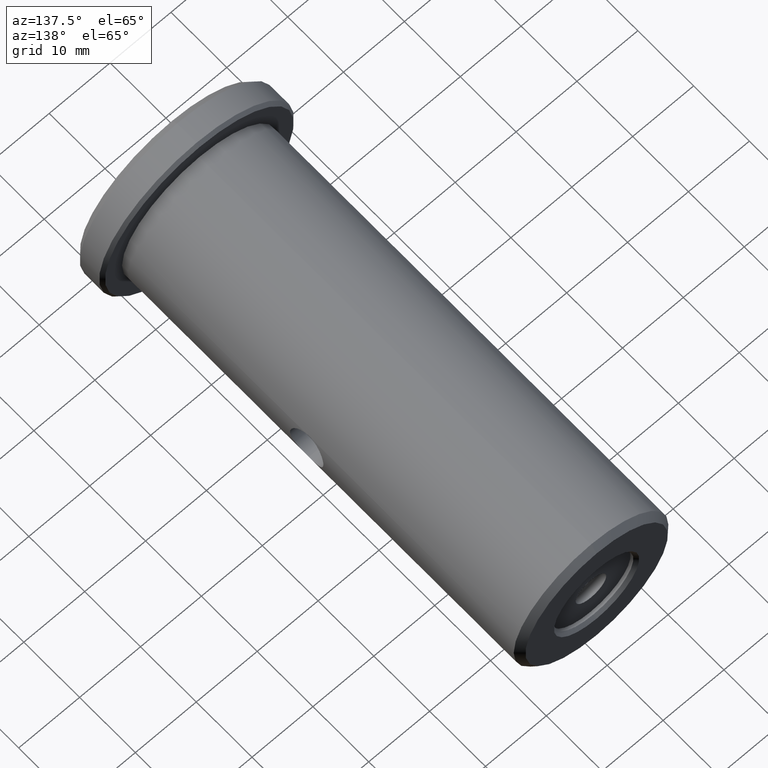
[diagram: clean part render]
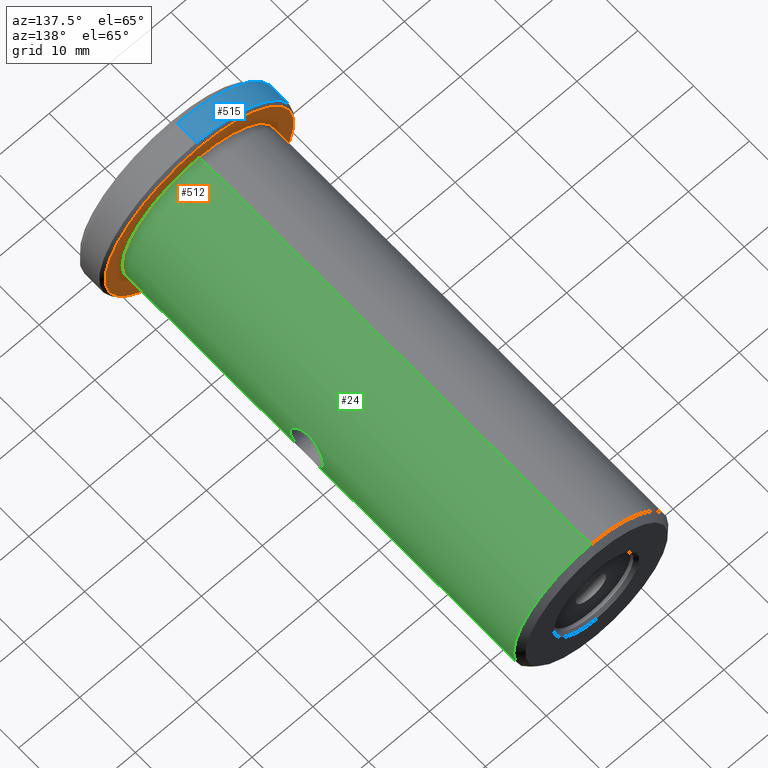
[diagram: same view with three faces highlighted in distinct colors, each labeled with its STEP entity id]
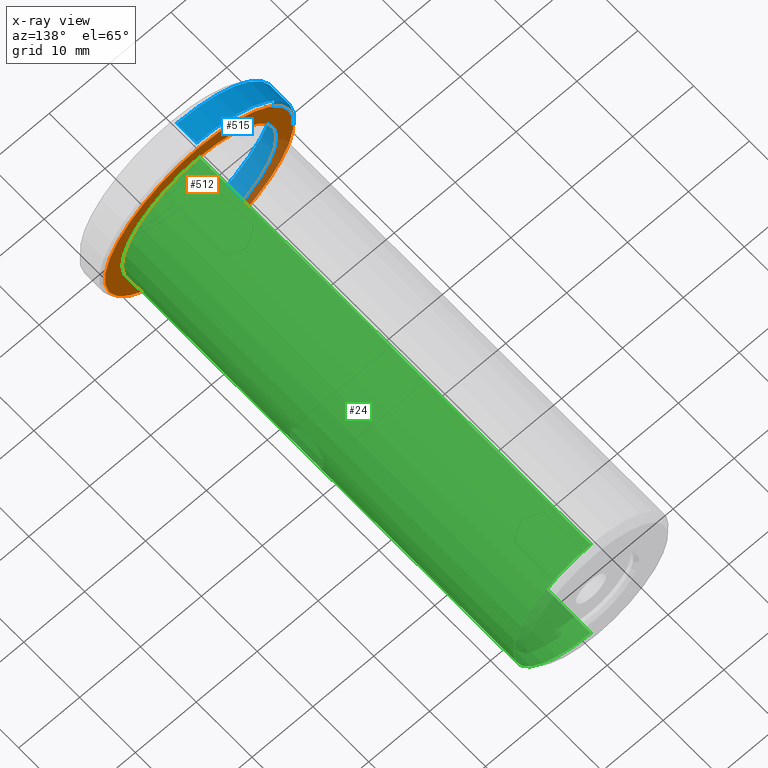
[diagram: x-ray of the same camera — body ghosted, the three highlighted faces saturated]
A machine part, auxiliary view with three faces highlighted in distinct colors.
The next image is the same camera in x-ray (body ghosted, the three faces saturated) — at least one of them is partly hidden behind the body in this view.
Their STEP definitions:

[orange] entity #512 — the highlighted planar face has unit normal (0, -1, 0).
#3 = ORIENTED_EDGE ( 'NONE', *, *, #183, .F. ) ;
#12 = VERTEX_POINT ( 'NONE', #610 ) ;
#26 = PLANE ( 'NONE',  #905 ) ;
#32 = AXIS2_PLACEMENT_3D ( 'NONE', #921, #911, #832 ) ;
#49 = DIRECTION ( 'NONE',  ( 0.0000000000000000000, 0.0000000000000000000, -1.000000000000000000 ) ) ;
#76 = EDGE_CURVE ( 'NONE', #573, #786, #350, .T. ) ;
#80 = DIRECTION ( 'NONE',  ( 0.0000000000000000000, 1.000000000000000000, 0.0000000000000000000 ) ) ;
#93 = CIRCLE ( 'NONE', #292, 15.50000000000000700 ) ;
#109 = EDGE_LOOP ( 'NONE', ( #110, #1011 ) ) ;
#110 = ORIENTED_EDGE ( 'NONE', *, *, #713, .F. ) ;
#132 = CARTESIAN_POINT ( 'NONE',  ( 1.928818708657082500E-015, -33.10000000000000100, 15.50000000000000700 ) ) ;
#183 = EDGE_CURVE ( 'NONE', #706, #12, #216, .T. ) ;
#216 = CIRCLE ( 'NONE', #452, 12.70000000000000800 ) ;
#225 = DIRECTION ( 'NONE',  ( 0.0000000000000000000, -1.000000000000000000, 0.0000000000000000000 ) ) ;
#238 = EDGE_LOOP ( 'NONE', ( #3, #830 ) ) ;
#270 = CARTESIAN_POINT ( 'NONE',  ( 0.0000000000000000000, -33.10000000000000100, -15.50000000000000700 ) ) ;
#292 = AXIS2_PLACEMENT_3D ( 'NONE', #652, #225, #49 ) ;
#350 = CIRCLE ( 'NONE', #32, 15.50000000000000700 ) ;
#385 = CIRCLE ( 'NONE', #633, 12.70000000000000800 ) ;
#396 = FACE_OUTER_BOUND ( 'NONE', #109, .T. ) ;
#430 = CARTESIAN_POINT ( 'NONE',  ( 15.50000000000000700, -33.10000000000000100, 0.0000000000000000000 ) ) ;
#452 = AXIS2_PLACEMENT_3D ( 'NONE', #858, #80, #849 ) ;
#512 = ADVANCED_FACE ( 'NONE', ( #396, #662 ), #26, .F. ) ;
#516 = DIRECTION ( 'NONE',  ( 0.0000000000000000000, 0.0000000000000000000, 1.000000000000000000 ) ) ;
#526 = CARTESIAN_POINT ( 'NONE',  ( 0.0000000000000000000, -33.10000000000000100, 0.0000000000000000000 ) ) ;
#549 = DIRECTION ( 'NONE',  ( 0.0000000000000000000, 1.000000000000000000, 0.0000000000000000000 ) ) ;
#555 = DIRECTION ( 'NONE',  ( 0.0000000000000000000, -1.000000000000000000, 0.0000000000000000000 ) ) ;
#573 = VERTEX_POINT ( 'NONE', #132 ) ;
#610 = CARTESIAN_POINT ( 'NONE',  ( 1.555301434917139400E-015, -33.10000000000000100, -12.70000000000000800 ) ) ;
#633 = AXIS2_PLACEMENT_3D ( 'NONE', #526, #549, #516 ) ;
#652 = CARTESIAN_POINT ( 'NONE',  ( 0.0000000000000000000, -33.10000000000000100, 0.0000000000000000000 ) ) ;
#662 = FACE_BOUND ( 'NONE', #238, .T. ) ;
#706 = VERTEX_POINT ( 'NONE', #809 ) ;
#713 = EDGE_CURVE ( 'NONE', #786, #573, #93, .T. ) ;
#714 = DIRECTION ( 'NONE',  ( 0.0000000000000000000, -0.0000000000000000000, -1.000000000000000000 ) ) ;
#786 = VERTEX_POINT ( 'NONE', #270 ) ;
#809 = CARTESIAN_POINT ( 'NONE',  ( 0.0000000000000000000, -33.10000000000000100, 12.70000000000000800 ) ) ;
#830 = ORIENTED_EDGE ( 'NONE', *, *, #874, .F. ) ;
#832 = DIRECTION ( 'NONE',  ( 0.0000000000000000000, 0.0000000000000000000, -1.000000000000000000 ) ) ;
#849 = DIRECTION ( 'NONE',  ( 0.0000000000000000000, 0.0000000000000000000, 1.000000000000000000 ) ) ;
#858 = CARTESIAN_POINT ( 'NONE',  ( 0.0000000000000000000, -33.10000000000000100, 0.0000000000000000000 ) ) ;
#874 = EDGE_CURVE ( 'NONE', #12, #706, #385, .T. ) ;
#905 = AXIS2_PLACEMENT_3D ( 'NONE', #430, #555, #714 ) ;
#911 = DIRECTION ( 'NONE',  ( 0.0000000000000000000, -1.000000000000000000, 0.0000000000000000000 ) ) ;
#921 = CARTESIAN_POINT ( 'NONE',  ( 0.0000000000000000000, -33.10000000000000100, 0.0000000000000000000 ) ) ;
#1011 = ORIENTED_EDGE ( 'NONE', *, *, #76, .F. ) ;

[blue] entity #515 — the highlighted cylindrical surface (partial cylindrical patch) has radius 16 mm, axis along (0, 1, 0).
#21 = CARTESIAN_POINT ( 'NONE',  ( 1.959434878635766300E-015, -37.09999999999999400, -16.00000000000000700 ) ) ;
#40 = CARTESIAN_POINT ( 'NONE',  ( 0.0000000000000000000, -33.60000000000000100, 0.0000000000000000000 ) ) ;
#107 = AXIS2_PLACEMENT_3D ( 'NONE', #556, #585, #570 ) ;
#149 = LINE ( 'NONE', #275, #265 ) ;
#159 = VERTEX_POINT ( 'NONE', #795 ) ;
#160 = DIRECTION ( 'NONE',  ( 0.0000000000000000000, 1.000000000000000000, 0.0000000000000000000 ) ) ;
#214 = VECTOR ( 'NONE', #328, 1000.000000000000000 ) ;
#218 = CARTESIAN_POINT ( 'NONE',  ( 1.959434878635766300E-015, -33.60000000000000100, -16.00000000000000700 ) ) ;
#219 = EDGE_CURVE ( 'NONE', #375, #159, #149, .T. ) ;
#244 = LINE ( 'NONE', #330, #214 ) ;
#265 = VECTOR ( 'NONE', #160, 1000.000000000000000 ) ;
#275 = CARTESIAN_POINT ( 'NONE',  ( 0.0000000000000000000, 26.50383876709786800, 16.00000000000000700 ) ) ;
#328 = DIRECTION ( 'NONE',  ( 0.0000000000000000000, 1.000000000000000000, 0.0000000000000000000 ) ) ;
#330 = CARTESIAN_POINT ( 'NONE',  ( 1.959434878635766300E-015, 26.50383876709786800, -16.00000000000000700 ) ) ;
#368 = VERTEX_POINT ( 'NONE', #218 ) ;
#375 = VERTEX_POINT ( 'NONE', #888 ) ;
#386 = EDGE_LOOP ( 'NONE', ( #440, #534, #742, #414 ) ) ;
#414 = ORIENTED_EDGE ( 'NONE', *, *, #503, .F. ) ;
#440 = ORIENTED_EDGE ( 'NONE', *, *, #728, .F. ) ;
#482 = VERTEX_POINT ( 'NONE', #21 ) ;
#503 = EDGE_CURVE ( 'NONE', #368, #159, #825, .T. ) ;
#509 = DIRECTION ( 'NONE',  ( 0.0000000000000000000, 0.0000000000000000000, -1.000000000000000000 ) ) ;
#515 = ADVANCED_FACE ( 'NONE', ( #763 ), #701, .T. ) ;
#534 = ORIENTED_EDGE ( 'NONE', *, *, #871, .T. ) ;
#556 = CARTESIAN_POINT ( 'NONE',  ( 0.0000000000000000000, -37.09999999999999400, 0.0000000000000000000 ) ) ;
#570 = DIRECTION ( 'NONE',  ( 0.0000000000000000000, 0.0000000000000000000, 1.000000000000000000 ) ) ;
#581 = AXIS2_PLACEMENT_3D ( 'NONE', #664, #1008, #984 ) ;
#585 = DIRECTION ( 'NONE',  ( 0.0000000000000000000, 1.000000000000000000, 0.0000000000000000000 ) ) ;
#664 = CARTESIAN_POINT ( 'NONE',  ( 0.0000000000000000000, 26.50383876709786800, 0.0000000000000000000 ) ) ;
#701 = CYLINDRICAL_SURFACE ( 'NONE', #581, 16.00000000000000700 ) ;
#728 = EDGE_CURVE ( 'NONE', #482, #368, #244, .T. ) ;
#742 = ORIENTED_EDGE ( 'NONE', *, *, #219, .T. ) ;
#763 = FACE_OUTER_BOUND ( 'NONE', #386, .T. ) ;
#795 = CARTESIAN_POINT ( 'NONE',  ( 1.959434878635766300E-015, -33.60000000000000100, 16.00000000000000700 ) ) ;
#825 = CIRCLE ( 'NONE', #1007, 16.00000000000000700 ) ;
#871 = EDGE_CURVE ( 'NONE', #482, #375, #991, .T. ) ;
#888 = CARTESIAN_POINT ( 'NONE',  ( 0.0000000000000000000, -37.09999999999999400, 16.00000000000000700 ) ) ;
#984 = DIRECTION ( 'NONE',  ( 0.0000000000000000000, 0.0000000000000000000, 1.000000000000000000 ) ) ;
#991 = CIRCLE ( 'NONE', #107, 16.00000000000000700 ) ;
#997 = DIRECTION ( 'NONE',  ( -0.0000000000000000000, 1.000000000000000000, -0.0000000000000000000 ) ) ;
#1007 = AXIS2_PLACEMENT_3D ( 'NONE', #40, #997, #509 ) ;
#1008 = DIRECTION ( 'NONE',  ( 0.0000000000000000000, 1.000000000000000000, 0.0000000000000000000 ) ) ;

[green] entity #24 — the highlighted cylindrical surface (partial cylindrical patch) has radius 12.7 mm, axis along (0, 1, 0).
#12 = VERTEX_POINT ( 'NONE', #610 ) ;
#24 = ADVANCED_FACE ( 'NONE', ( #907, #762 ), #536, .T. ) ;
#33 = EDGE_LOOP ( 'NONE', ( #445, #282, #571, #936 ) ) ;
#43 = ORIENTED_EDGE ( 'NONE', *, *, #256, .F. ) ;
#65 = CARTESIAN_POINT ( 'NONE',  ( 12.61184948913362500, -2.603882549335853700, -1.502813849894426100 ) ) ;
#80 = DIRECTION ( 'NONE',  ( 0.0000000000000000000, 1.000000000000000000, 0.0000000000000000000 ) ) ;
#97 = EDGE_CURVE ( 'NONE', #137, #789, #658, .T. ) ;
#99 = CARTESIAN_POINT ( 'NONE',  ( 12.54501379897762100, 2.259605770921662600, -1.982973375450764100 ) ) ;
#113 = CARTESIAN_POINT ( 'NONE',  ( 12.43104311460961000, -1.505702462821098700, -2.602242093451448300 ) ) ;
#119 = CARTESIAN_POINT ( 'NONE',  ( 12.67747894214160100, 2.903424418151325300, 0.7802111343050287500 ) ) ;
#134 = CARTESIAN_POINT ( 'NONE',  ( 12.54510018992769100, -2.260074456527658700, -1.982419639357174500 ) ) ;
#137 = VERTEX_POINT ( 'NONE', #657 ) ;
#141 = EDGE_LOOP ( 'NONE', ( #417, #43 ) ) ;
#145 = CARTESIAN_POINT ( 'NONE',  ( 12.41113163061574700, -1.333592059538674100, -2.694390179056005900 ) ) ;
#146 = LINE ( 'NONE', #287, #522 ) ;
#147 = EDGE_CURVE ( 'NONE', #706, #789, #146, .T. ) ;
#155 = CARTESIAN_POINT ( 'NONE',  ( 12.56857411084801900, -2.385479401305894400, -1.829792836393114000 ) ) ;
#157 = CARTESIAN_POINT ( 'NONE',  ( 12.47454810378221300, 1.830403358838166500, -2.384947633839920500 ) ) ;
#164 = CARTESIAN_POINT ( 'NONE',  ( 12.36381461348561200, -0.7818070014868209200, -2.903044826625440100 ) ) ;
#175 = VERTEX_POINT ( 'NONE', #379 ) ;
#183 = EDGE_CURVE ( 'NONE', #706, #12, #216, .T. ) ;
#189 = CARTESIAN_POINT ( 'NONE',  ( 12.69998125227231300, 2.999920634613350200, -0.1976705434757185200 ) ) ;
#197 = CARTESIAN_POINT ( 'NONE',  ( 12.34058345460214500, 0.0000000000000000000, -3.000000000000000400 ) ) ;
#216 = CIRCLE ( 'NONE', #452, 12.70000000000000800 ) ;
#236 = CARTESIAN_POINT ( 'NONE',  ( 12.37755469971724900, -0.9726971642225676900, -2.844655769152294200 ) ) ;
#242 = CARTESIAN_POINT ( 'NONE',  ( 12.63141432737123400, -2.695922098692306300, -1.330566274978684600 ) ) ;
#252 = CARTESIAN_POINT ( 'NONE',  ( 12.67748171377693500, 2.903438611103019300, -0.7804499343708762900 ) ) ;
#254 = CARTESIAN_POINT ( 'NONE',  ( 12.34058345460214700, 0.1989779262808130100, -3.000000000000000900 ) ) ;
#256 = EDGE_CURVE ( 'NONE', #802, #175, #508, .T. ) ;
#268 = CARTESIAN_POINT ( 'NONE',  ( 12.34058345460214800, -0.3922863687159812200, 3.000000000000002700 ) ) ;
#271 = CARTESIAN_POINT ( 'NONE',  ( 12.36364845247827300, 0.7788841922981167800, -2.903747440990431800 ) ) ;
#277 = CARTESIAN_POINT ( 'NONE',  ( 12.66431776804078200, -2.846104808753819900, -0.9685504591483922200 ) ) ;
#282 = ORIENTED_EDGE ( 'NONE', *, *, #880, .T. ) ;
#287 = CARTESIAN_POINT ( 'NONE',  ( 0.0000000000000000000, 26.50383876709786800, 12.70000000000000800 ) ) ;
#301 = CARTESIAN_POINT ( 'NONE',  ( 12.61164142107485700, 2.602893796124840600, -1.504603309470562900 ) ) ;
#309 = CARTESIAN_POINT ( 'NONE',  ( 12.69540616597752500, 2.980729924772695000, -0.3928192765991709300 ) ) ;
#342 = AXIS2_PLACEMENT_3D ( 'NONE', #367, #722, #489 ) ;
#344 = DIRECTION ( 'NONE',  ( 0.0000000000000000000, 1.000000000000000000, 0.0000000000000000000 ) ) ;
#354 = CARTESIAN_POINT ( 'NONE',  ( 12.69996635353023400, -2.999857563269277400, 0.3969109907540832000 ) ) ;
#367 = CARTESIAN_POINT ( 'NONE',  ( 0.0000000000000000000, 26.50383876709786800, 0.0000000000000000000 ) ) ;
#379 = CARTESIAN_POINT ( 'NONE',  ( 12.34058345460214500, 0.0000000000000000000, -3.000000000000000400 ) ) ;
#383 = CARTESIAN_POINT ( 'NONE',  ( 12.56820308289541400, 2.383544736948750100, -1.832375976632214500 ) ) ;
#389 = DIRECTION ( 'NONE',  ( -0.0000000000000000000, -1.000000000000000000, -0.0000000000000000000 ) ) ;
#403 = CARTESIAN_POINT ( 'NONE',  ( 12.69541110465184300, -2.980746113517729800, -0.3920264036733793200 ) ) ;
#417 = ORIENTED_EDGE ( 'NONE', *, *, #469, .F. ) ;
#429 = VECTOR ( 'NONE', #344, 1000.000000000000000 ) ;
#443 = CARTESIAN_POINT ( 'NONE',  ( 12.37731333908835700, 0.9698132417050455700, -2.845713835891867700 ) ) ;
#445 = ORIENTED_EDGE ( 'NONE', *, *, #183, .T. ) ;
#451 = LINE ( 'NONE', #589, #429 ) ;
#452 = AXIS2_PLACEMENT_3D ( 'NONE', #858, #80, #849 ) ;
#469 = EDGE_CURVE ( 'NONE', #175, #802, #729, .T. ) ;
#471 = CARTESIAN_POINT ( 'NONE',  ( 12.70001675460108400, -3.000070927815543100, -0.1968384151971258900 ) ) ;
#474 = CARTESIAN_POINT ( 'NONE',  ( 12.49830911177946500, 1.983980261250872300, -2.258721755926568400 ) ) ;
#480 = CARTESIAN_POINT ( 'NONE',  ( 12.34058345460214700, 3.673983527228629800E-016, 3.000000000000000400 ) ) ;
#489 = DIRECTION ( 'NONE',  ( 0.0000000000000000000, 0.0000000000000000000, 1.000000000000000000 ) ) ;
#495 = CARTESIAN_POINT ( 'NONE',  ( 12.34058345460214700, 3.673983527228629800E-016, 3.000000000000000400 ) ) ;
#508 = B_SPLINE_CURVE_WITH_KNOTS ( 'NONE', 3,
 ( #881, #268, #619, #684, #641, #628, #545, #561, #538, #993, #901, #1017, #354, #471, #403, #926, #277, #242, #65, #155, #134, #968, #892, #113, #145, #236, #164, #1001, #865, #835 ),
 .UNSPECIFIED., .F., .F.,
 ( 4, 2, 2, 2, 2, 2, 2, 2, 2, 2, 2, 2, 2, 2, 4 ),
 ( 0.009412667079034400100, 0.01058893397553798500, 0.01117706742378978000, 0.01176520087204157100, 0.01235333432029336500, 0.01294146776854515800, 0.01411773466504874300, 0.01470586811330053600, 0.01529400156155232900, 0.01588213500980412100, 0.01647026845805591600, 0.01705840190630770700, 0.01764653535455949800, 0.01823466880281129200, 0.01882280225106308300 ),
 .UNSPECIFIED. ) ;
#514 = CARTESIAN_POINT ( 'NONE',  ( 12.34058345460213800, 0.1961959589774335300, 2.999999999999999100 ) ) ;
#522 = VECTOR ( 'NONE', #775, 1000.000000000000000 ) ;
#524 = CARTESIAN_POINT ( 'NONE',  ( 12.34540943226093500, 0.3953800005819881300, 2.980342611530813800 ) ) ;
#536 = CYLINDRICAL_SURFACE ( 'NONE', #342, 12.70000000000000800 ) ;
#538 = CARTESIAN_POINT ( 'NONE',  ( 12.56844300761516200, -2.384757141274783000, 1.830568633040425600 ) ) ;
#545 = CARTESIAN_POINT ( 'NONE',  ( 12.49796677050641900, -1.981859612206926500, 2.260636793640892000 ) ) ;
#561 = CARTESIAN_POINT ( 'NONE',  ( 12.54482249560000200, -2.258576005346343500, 1.984207817577006600 ) ) ;
#564 = CARTESIAN_POINT ( 'NONE',  ( 12.36380123083862200, 0.7815191426890530900, 2.903100972508035200 ) ) ;
#569 = CARTESIAN_POINT ( 'NONE',  ( 12.47463182756675300, 1.830920196572526400, 2.384495194046026200 ) ) ;
#571 = ORIENTED_EDGE ( 'NONE', *, *, #97, .T. ) ;
#583 = CARTESIAN_POINT ( 'NONE',  ( 12.49792670909633700, 1.981660059747385000, 2.260912276721163100 ) ) ;
#589 = CARTESIAN_POINT ( 'NONE',  ( 1.555301434917139400E-015, 26.50383876709786800, -12.70000000000000800 ) ) ;
#599 = CARTESIAN_POINT ( 'NONE',  ( 12.54505977580016700, 2.259940119749593200, 1.982768662898593400 ) ) ;
#600 = CARTESIAN_POINT ( 'NONE',  ( 12.34539429430230400, 0.3944842333164501600, -2.980401311188662900 ) ) ;
#610 = CARTESIAN_POINT ( 'NONE',  ( 1.555301434917139400E-015, -33.10000000000000100, -12.70000000000000800 ) ) ;
#619 = CARTESIAN_POINT ( 'NONE',  ( 12.36050455192010000, -0.7883155537857072800, 2.920874390630896000 ) ) ;
#621 = CARTESIAN_POINT ( 'NONE',  ( 1.555301434917139400E-015, 37.10000000000000100, 12.70000000000000800 ) ) ;
#628 = CARTESIAN_POINT ( 'NONE',  ( 12.47468320798981100, -1.831332780074598900, 2.384247804627437800 ) ) ;
#636 = CARTESIAN_POINT ( 'NONE',  ( 12.56845845584328800, 2.384838063548884600, 1.830462364816147300 ) ) ;
#641 = CARTESIAN_POINT ( 'NONE',  ( 12.43103365166613000, -1.505541849477607800, 2.602260764166047100 ) ) ;
#645 = CARTESIAN_POINT ( 'NONE',  ( 12.61142186795497000, 2.601781344507210700, 1.506246624472293000 ) ) ;
#656 = CARTESIAN_POINT ( 'NONE',  ( 12.63130768527638500, 2.695434302115961700, 1.331724090208787500 ) ) ;
#657 = CARTESIAN_POINT ( 'NONE',  ( 0.0000000000000000000, 37.10000000000000100, -12.70000000000000800 ) ) ;
#658 = CIRCLE ( 'NONE', #977, 12.70000000000000800 ) ;
#669 = CARTESIAN_POINT ( 'NONE',  ( 12.66440676946795900, 2.846512086650439400, 0.9675867248049365700 ) ) ;
#670 = CARTESIAN_POINT ( 'NONE',  ( 12.41102950409115900, 1.332781145287208500, -2.694869083710705700 ) ) ;
#684 = CARTESIAN_POINT ( 'NONE',  ( 12.41076176351435500, -1.330169052897213700, 2.696087432792285900 ) ) ;
#706 = VERTEX_POINT ( 'NONE', #809 ) ;
#709 = CARTESIAN_POINT ( 'NONE',  ( 12.70001863278653100, 3.000078878802316900, 0.1952541387555735400 ) ) ;
#722 = DIRECTION ( 'NONE',  ( 0.0000000000000000000, 1.000000000000000000, 0.0000000000000000000 ) ) ;
#729 = B_SPLINE_CURVE_WITH_KNOTS ( 'NONE', 3,
 ( #197, #254, #600, #271, #443, #670, #868, #157, #474, #99, #383, #301, #960, #1022, #252, #309, #189, #709, #899, #119, #669, #656, #645, #636, #599, #583, #569, #965, #978, #1000, #564, #524, #514, #495 ),
 .UNSPECIFIED., .F., .F.,
 ( 4, 2, 2, 2, 2, 2, 2, 2, 2, 2, 2, 2, 2, 2, 2, 2, 4 ),
 ( 0.0000000000000000000, 0.0005882916924396493600, 0.001176583384879298700, 0.001764875077318948500, 0.002353166769758598300, 0.002941458462198248500, 0.003529750154637897900, 0.004118041847077548100, 0.004706333539517198300, 0.005294625231956847700, 0.005882916924396498800, 0.006471208616836149000, 0.007059500309275799200, 0.007647792001715450300, 0.008236083694155099700, 0.008824375386594751600, 0.009412667079034400100 ),
 .UNSPECIFIED. ) ;
#762 = FACE_OUTER_BOUND ( 'NONE', #33, .T. ) ;
#775 = DIRECTION ( 'NONE',  ( 0.0000000000000000000, 1.000000000000000000, 0.0000000000000000000 ) ) ;
#776 = DIRECTION ( 'NONE',  ( 0.0000000000000000000, 0.0000000000000000000, 1.000000000000000000 ) ) ;
#789 = VERTEX_POINT ( 'NONE', #621 ) ;
#802 = VERTEX_POINT ( 'NONE', #480 ) ;
#809 = CARTESIAN_POINT ( 'NONE',  ( 0.0000000000000000000, -33.10000000000000100, 12.70000000000000800 ) ) ;
#835 = CARTESIAN_POINT ( 'NONE',  ( 12.34058345460214500, 0.0000000000000000000, -3.000000000000000400 ) ) ;
#849 = DIRECTION ( 'NONE',  ( 0.0000000000000000000, 0.0000000000000000000, 1.000000000000000000 ) ) ;
#858 = CARTESIAN_POINT ( 'NONE',  ( 0.0000000000000000000, -33.10000000000000100, 0.0000000000000000000 ) ) ;
#865 = CARTESIAN_POINT ( 'NONE',  ( 12.34058345460214300, -0.1989244033418514100, -3.000000000000000000 ) ) ;
#868 = CARTESIAN_POINT ( 'NONE',  ( 12.43094741850346300, 1.504818854237115500, -2.602666303646544500 ) ) ;
#880 = EDGE_CURVE ( 'NONE', #12, #137, #451, .T. ) ;
#881 = CARTESIAN_POINT ( 'NONE',  ( 12.34058345460214700, 3.673983527228629800E-016, 3.000000000000000400 ) ) ;
#892 = CARTESIAN_POINT ( 'NONE',  ( 12.47492482388632800, -1.833045648879968200, -2.383012267823712400 ) ) ;
#899 = CARTESIAN_POINT ( 'NONE',  ( 12.69532512922621100, 2.980382720429737700, 0.3948690995440590200 ) ) ;
#901 = CARTESIAN_POINT ( 'NONE',  ( 12.63103276044701900, -2.694153476701962400, 1.334365138730794900 ) ) ;
#907 = FACE_BOUND ( 'NONE', #141, .T. ) ;
#926 = CARTESIAN_POINT ( 'NONE',  ( 12.67766831579774600, -2.904248302489956600, -0.7770932324453367900 ) ) ;
#936 = ORIENTED_EDGE ( 'NONE', *, *, #147, .F. ) ;
#960 = CARTESIAN_POINT ( 'NONE',  ( 12.63135113081014500, 2.695621424171695600, -1.331080578736588000 ) ) ;
#965 = CARTESIAN_POINT ( 'NONE',  ( 12.43116662401985900, 1.506563363095320800, 2.601605836714064900 ) ) ;
#968 = CARTESIAN_POINT ( 'NONE',  ( 12.49844356737610200, -1.984814696794137400, -2.257971389311170800 ) ) ;
#977 = AXIS2_PLACEMENT_3D ( 'NONE', #982, #389, #776 ) ;
#978 = CARTESIAN_POINT ( 'NONE',  ( 12.41082553459716200, 1.330833789716795400, 2.695800476185902000 ) ) ;
#982 = CARTESIAN_POINT ( 'NONE',  ( 0.0000000000000000000, 37.10000000000000100, 0.0000000000000000000 ) ) ;
#993 = CARTESIAN_POINT ( 'NONE',  ( 12.61140969090288700, -2.601722771355547100, 1.506348818880467700 ) ) ;
#1000 = CARTESIAN_POINT ( 'NONE',  ( 12.37722027103388500, 0.9685606658001303400, 2.846111210040975800 ) ) ;
#1001 = CARTESIAN_POINT ( 'NONE',  ( 12.34539404842547400, -0.3950501257214609800, -2.980407161972672200 ) ) ;
#1017 = CARTESIAN_POINT ( 'NONE',  ( 12.68085570871133600, -2.921643193019114000, 0.7873843855616280400 ) ) ;
#1022 = CARTESIAN_POINT ( 'NONE',  ( 12.66417354560177200, 2.845458674054940100, -0.9703171150653150400 ) ) ;